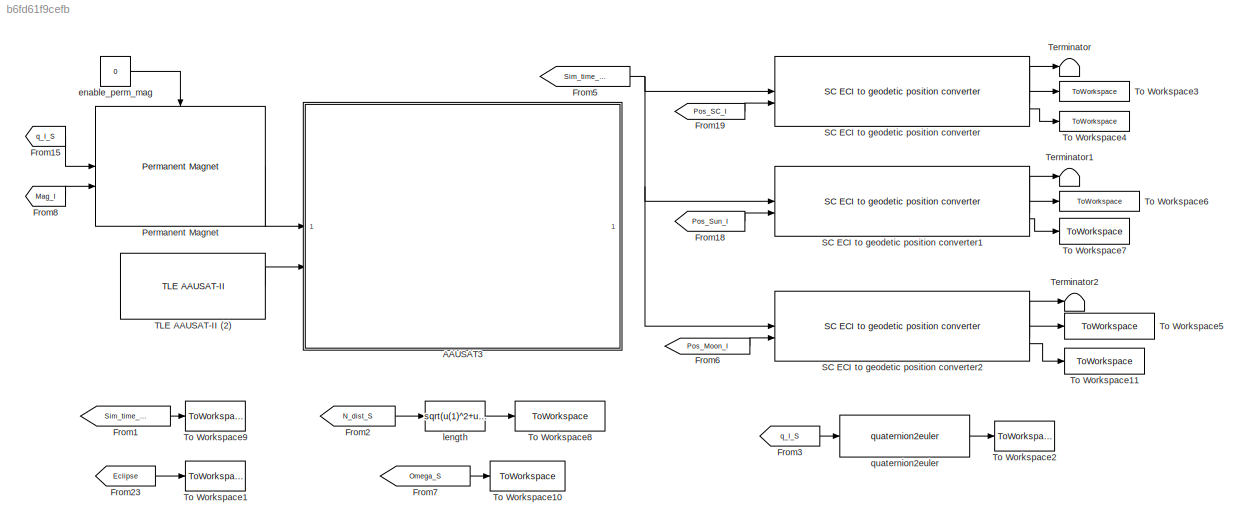
MODEL mdl_b6fd61f9cefb
KIND model
CONFIG AbsTol = auto
CONFIG EnableMultiTasking = on
CONFIG FixedStep = auto
CONFIG MaxStep = auto
CONFIG MinStep = auto
CONFIG RelTol = 1e-3
CONFIG SampleTimeConstraint = Unconstrained
CONFIG SolverName = ode45
CONFIG StartTime = 0.0
CONFIG StopTime = 58300
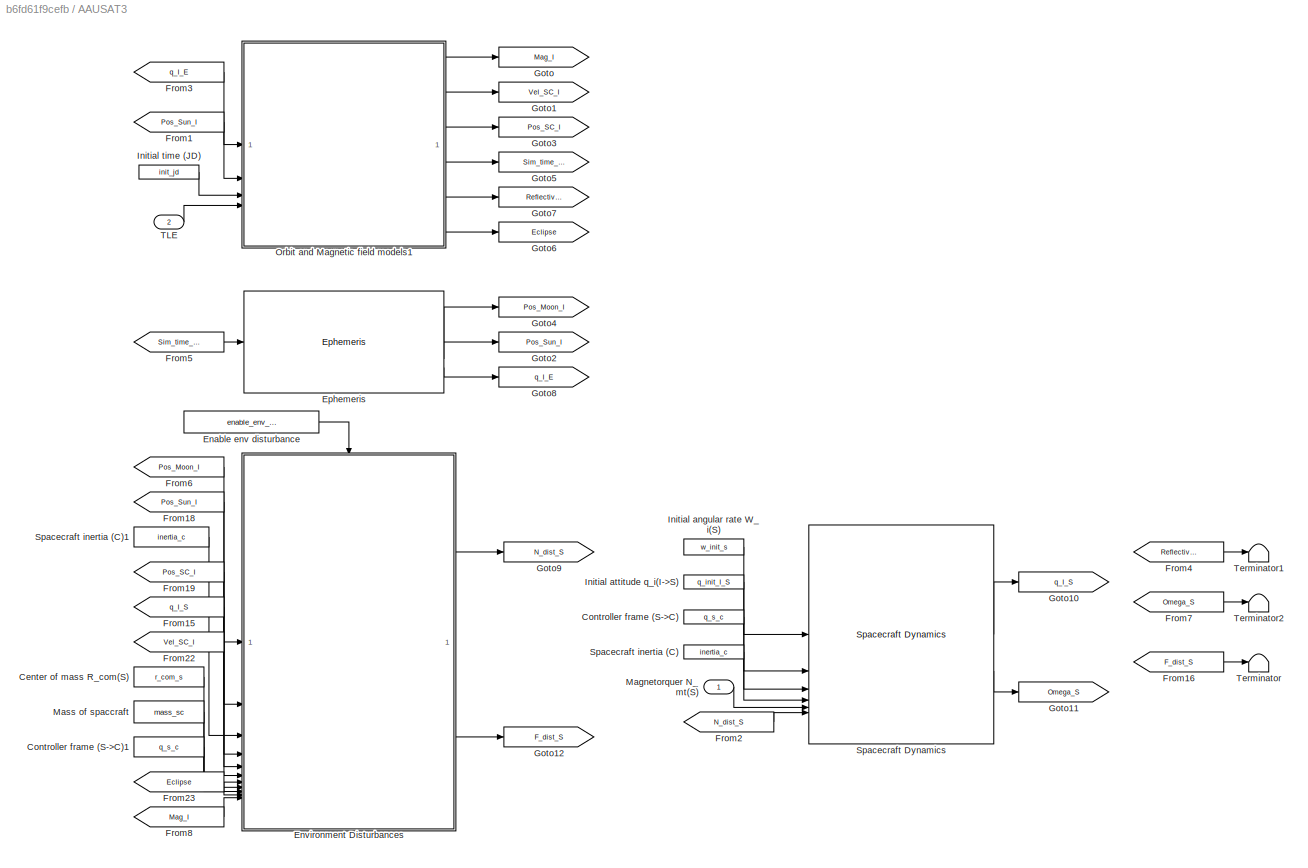
BLOCK [SubSystem] AAUSAT3
  AncestorBlock = aausat3_lib/AAUSAT3
  ShowPortLabels = none
BLOCK [Constant] AAUSAT3/Center of mass R_com(S)
  Value = r_com_s
BLOCK [Constant] AAUSAT3/Controller frame (S->C)
  NameLocation = top
  Value = q_s_c
BLOCK [Constant] AAUSAT3/Controller frame (S->C)1
  Value = q_s_c
BLOCK [Constant] AAUSAT3/Enable env disturbance
  Value = enable_env_disturbance
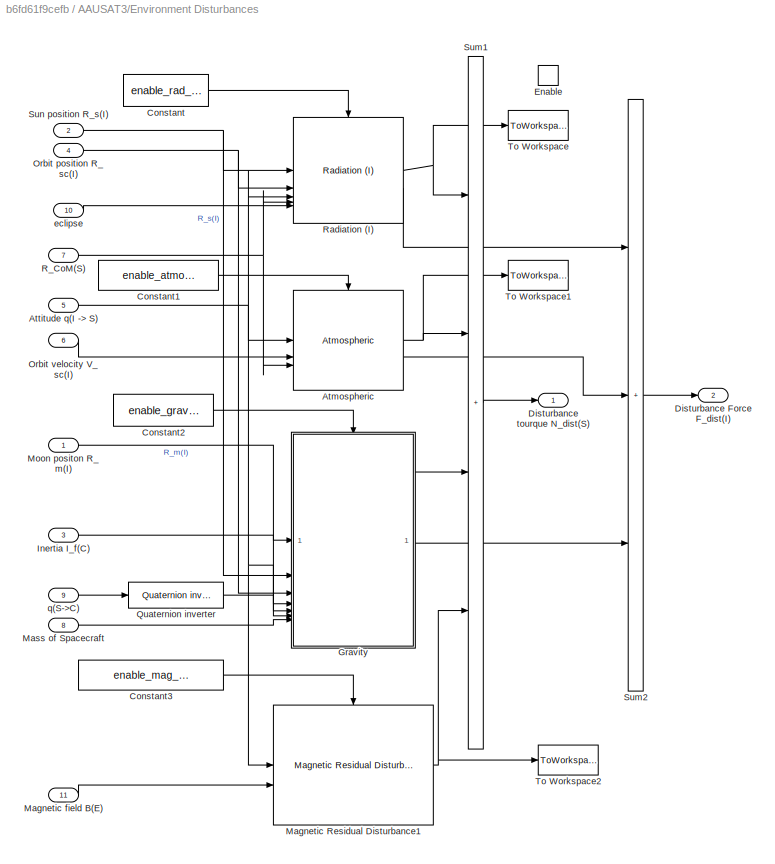
BLOCK [SubSystem] AAUSAT3/Environment Disturbances
  AncestorBlock = aausat3_lib/Disturbances/Environment Disturbances
BLOCK [Reference] AAUSAT3/Environment Disturbances/Atmospheric  REF=aausat3_lib/Disturbances/Atmospheric  (lib defined in mdl_4157f6465749, slx_d9305f96731e)
  SourceBlock = aausat3_lib/Disturbances/Atmospheric
  SourceProductName = AAUSAT3
BLOCK [Inport] AAUSAT3/Environment Disturbances/Attitude q(I -> S)
  Port = 5
BLOCK [Constant] AAUSAT3/Environment Disturbances/Constant
  Value = enable_rad_dist
BLOCK [Constant] AAUSAT3/Environment Disturbances/Constant1
  Value = enable_atmospheric_dist
BLOCK [Constant] AAUSAT3/Environment Disturbances/Constant2
  Value = enable_gravity_dist
BLOCK [Constant] AAUSAT3/Environment Disturbances/Constant3
  Value = enable_mag_residual_dist
BLOCK [Outport] AAUSAT3/Environment Disturbances/Disturbance Force F_dist(I)
  Port = 2
BLOCK [Outport] AAUSAT3/Environment Disturbances/Disturbance tourque N_dist(S)
BLOCK [EnablePort] AAUSAT3/Environment Disturbances/Enable
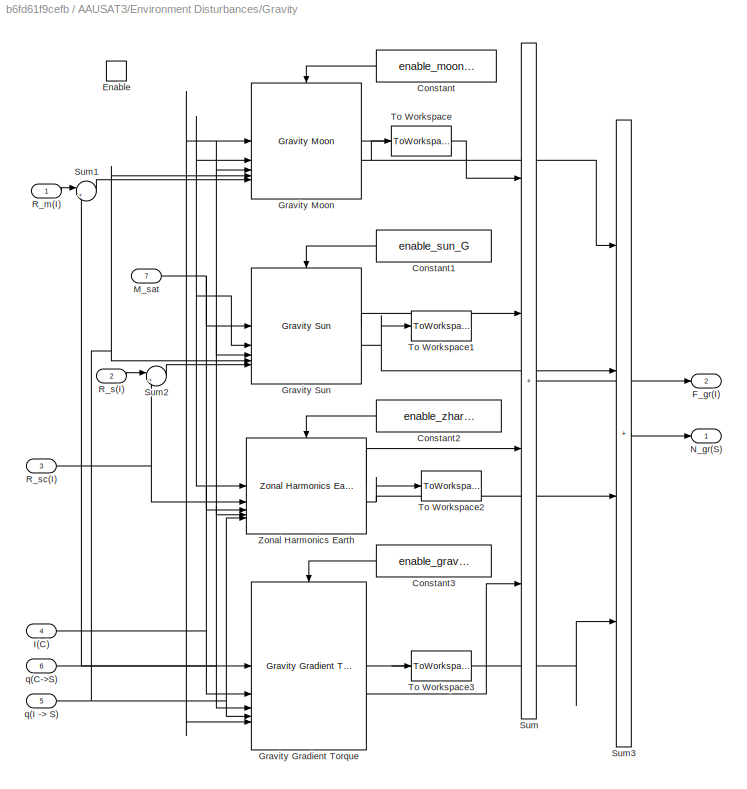
BLOCK [SubSystem] AAUSAT3/Environment Disturbances/Gravity
  AncestorBlock = aausat3_lib/Disturbances/Gravity
BLOCK [Constant] AAUSAT3/Environment Disturbances/Gravity/Constant
  Value = enable_moon_G
BLOCK [Constant] AAUSAT3/Environment Disturbances/Gravity/Constant1
  NameLocation = top
  Value = enable_sun_G
BLOCK [Constant] AAUSAT3/Environment Disturbances/Gravity/Constant2
  NameLocation = top
  Value = enable_zharm_earth
BLOCK [Constant] AAUSAT3/Environment Disturbances/Gravity/Constant3
  NameLocation = top
  Value = enable_gravity_torque
BLOCK [EnablePort] AAUSAT3/Environment Disturbances/Gravity/Enable
BLOCK [Outport] AAUSAT3/Environment Disturbances/Gravity/F_gr(I)
  Port = 2
BLOCK [Reference] AAUSAT3/Environment Disturbances/Gravity/Gravity Gradient Torque  REF=aausat3_lib/Disturbances/Gravity Gradient Torque  (lib defined in mdl_4157f6465749, slx_d9305f96731e)
  SourceBlock = aausat3_lib/Disturbances/Gravity Gradient Torque
  SourceProductName = AAUSAT3
BLOCK [Reference] AAUSAT3/Environment Disturbances/Gravity/Gravity Moon  REF=aausat3_lib/Disturbances/Gravity Moon  (lib defined in mdl_4157f6465749, slx_d9305f96731e)
  SourceBlock = aausat3_lib/Disturbances/Gravity Moon
  SourceProductName = AAUSAT3
BLOCK [Reference] AAUSAT3/Environment Disturbances/Gravity/Gravity Sun  REF=aausat3_lib/Disturbances/Gravity Sun  (lib defined in mdl_4157f6465749, slx_d9305f96731e)
  SourceBlock = aausat3_lib/Disturbances/Gravity Sun
  SourceProductName = AAUSAT3
BLOCK [Inport] AAUSAT3/Environment Disturbances/Gravity/I(C)
  Port = 4
BLOCK [Inport] AAUSAT3/Environment Disturbances/Gravity/M_sat
  Port = 7
BLOCK [Outport] AAUSAT3/Environment Disturbances/Gravity/N_gr(S)
BLOCK [Inport] AAUSAT3/Environment Disturbances/Gravity/R_m(I)
BLOCK [Inport] AAUSAT3/Environment Disturbances/Gravity/R_s(I)
  Port = 2
BLOCK [Inport] AAUSAT3/Environment Disturbances/Gravity/R_sc(I)
  Port = 3
BLOCK [Sum] AAUSAT3/Environment Disturbances/Gravity/Sum
  IconShape = rectangular
  Inputs = ++++
  SaturateOnIntegerOverflow = on
BLOCK [Sum] AAUSAT3/Environment Disturbances/Gravity/Sum1
  Inputs = |+-
  SaturateOnIntegerOverflow = on
BLOCK [Sum] AAUSAT3/Environment Disturbances/Gravity/Sum2
  Inputs = |+-
  SaturateOnIntegerOverflow = on
BLOCK [Sum] AAUSAT3/Environment Disturbances/Gravity/Sum3
  IconShape = rectangular
  Inputs = ++++
  SaturateOnIntegerOverflow = on
BLOCK [ToWorkspace] AAUSAT3/Environment Disturbances/Gravity/To Workspace
  MaxDataPoints = inf
  SampleTime = -1
  VariableName = N_moon
BLOCK [ToWorkspace] AAUSAT3/Environment Disturbances/Gravity/To Workspace1
  MaxDataPoints = inf
  SampleTime = -1
  VariableName = N_sun
BLOCK [ToWorkspace] AAUSAT3/Environment Disturbances/Gravity/To Workspace2
  MaxDataPoints = inf
  SampleTime = -1
  VariableName = N_zonal
BLOCK [ToWorkspace] AAUSAT3/Environment Disturbances/Gravity/To Workspace3
  MaxDataPoints = inf
  SampleTime = -1
  VariableName = N_earth
BLOCK [Reference] AAUSAT3/Environment Disturbances/Gravity/Zonal Harmonics Earth  REF=aausat3_lib/Disturbances/Zonal Harmonics  (lib defined in mdl_4157f6465749, slx_d9305f96731e)
 Earth
  SourceBlock = aausat3_lib/Disturbances/Zonal Harmonics\n Earth
  SourceProductName = AAUSAT3
  SourceType = SubSystem
BLOCK [Inport] AAUSAT3/Environment Disturbances/Gravity/q(C->S)
  Port = 6
BLOCK [Inport] AAUSAT3/Environment Disturbances/Gravity/q(I -> S)
  Port = 5
BLOCK [Inport] AAUSAT3/Environment Disturbances/Inertia I_f(C)
  NameLocation = top
  Port = 3
BLOCK [Reference] AAUSAT3/Environment Disturbances/Magnetic Residual Disturbance1  REF=aausat3_lib/Disturbances/Magnetic Residual Disturbance  (lib defined in mdl_4157f6465749, slx_d9305f96731e)
  SourceBlock = aausat3_lib/Disturbances/Magnetic Residual Disturbance
  SourceProductName = AAUSAT3
BLOCK [Inport] AAUSAT3/Environment Disturbances/Magnetic field B(E)
  Port = 11
BLOCK [Inport] AAUSAT3/Environment Disturbances/Mass of Spacecraft
  Port = 8
BLOCK [Inport] AAUSAT3/Environment Disturbances/Moon positon R_m(I)
  NameLocation = top
BLOCK [Inport] AAUSAT3/Environment Disturbances/Orbit position R_sc(I)
  Port = 4
BLOCK [Inport] AAUSAT3/Environment Disturbances/Orbit velocity V_sc(I)
  Port = 6
BLOCK [Reference] AAUSAT3/Environment Disturbances/Quaternion inverter  REF=aausat3_lib/Math Utilities/Quaternion operations/Quaternion inverter  (lib defined in mdl_4157f6465749, slx_d9305f96731e)
  SourceBlock = aausat3_lib/Math Utilities/Quaternion operations/Quaternion inverter
  SourceProductName = AAUSAT3
  SourceType = SubSystem
BLOCK [Inport] AAUSAT3/Environment Disturbances/R_CoM(S)
  Port = 7
BLOCK [Reference] AAUSAT3/Environment Disturbances/Radiation (I)  REF=aausat3_lib/Disturbances/Radiation (I)  (lib defined in mdl_4157f6465749, slx_d9305f96731e)
  SourceBlock = aausat3_lib/Disturbances/Radiation (I)
  SourceProductName = AAUSAT3
BLOCK [Sum] AAUSAT3/Environment Disturbances/Sum1
  IconShape = rectangular
  Inputs = ++++
  SaturateOnIntegerOverflow = on
BLOCK [Sum] AAUSAT3/Environment Disturbances/Sum2
  IconShape = rectangular
  Inputs = +++
  SaturateOnIntegerOverflow = on
BLOCK [Inport] AAUSAT3/Environment Disturbances/Sun position R_s(I)
  NameLocation = top
  Port = 2
BLOCK [ToWorkspace] AAUSAT3/Environment Disturbances/To Workspace
  MaxDataPoints = inf
  SampleTime = -1
  VariableName = N_radiation
BLOCK [ToWorkspace] AAUSAT3/Environment Disturbances/To Workspace1
  MaxDataPoints = inf
  SampleTime = -1
  VariableName = N_atmospheric
BLOCK [ToWorkspace] AAUSAT3/Environment Disturbances/To Workspace2
  MaxDataPoints = inf
  SampleTime = -1
  VariableName = N_mag_res
BLOCK [Inport] AAUSAT3/Environment Disturbances/eclipse
  Port = 10
BLOCK [Inport] AAUSAT3/Environment Disturbances/q(S->C)
  NameLocation = top
  Port = 9
BLOCK [Reference] AAUSAT3/Ephemeris  REF=aausat3_lib/Orbit and Ephemeris/Ephemeris  (lib defined in mdl_4157f6465749, slx_d9305f96731e)
  SourceBlock = aausat3_lib/Orbit and Ephemeris/Ephemeris
  SourceProductName = AAUSAT3
  SourceType = SubSystem
BLOCK [From] AAUSAT3/From1
  CloseFcn = tagdialog Close
  GotoTag = Pos_Sun_I
  TagVisibility = global
BLOCK [From] AAUSAT3/From15
  CloseFcn = tagdialog Close
  GotoTag = q_I_S
  TagVisibility = global
BLOCK [From] AAUSAT3/From16
  CloseFcn = tagdialog Close
  GotoTag = F_dist_S
  TagVisibility = global
BLOCK [From] AAUSAT3/From18
  CloseFcn = tagdialog Close
  GotoTag = Pos_Sun_I
  TagVisibility = global
BLOCK [From] AAUSAT3/From19
  CloseFcn = tagdialog Close
  GotoTag = Pos_SC_I
  TagVisibility = global
BLOCK [From] AAUSAT3/From2
  CloseFcn = tagdialog Close
  GotoTag = N_dist_S
  TagVisibility = global
BLOCK [From] AAUSAT3/From22
  CloseFcn = tagdialog Close
  GotoTag = Vel_SC_I
  TagVisibility = global
BLOCK [From] AAUSAT3/From23
  CloseFcn = tagdialog Close
  GotoTag = Eclipse
  TagVisibility = global
BLOCK [From] AAUSAT3/From3
  CloseFcn = tagdialog Close
  GotoTag = q_I_E
  TagVisibility = global
BLOCK [From] AAUSAT3/From4
  CloseFcn = tagdialog Close
  GotoTag = Reflectivity
  TagVisibility = global
BLOCK [From] AAUSAT3/From5
  CloseFcn = tagdialog Close
  GotoTag = Sim_time_JD
  TagVisibility = global
BLOCK [From] AAUSAT3/From6
  CloseFcn = tagdialog Close
  GotoTag = Pos_Moon_I
  TagVisibility = global
BLOCK [From] AAUSAT3/From7
  CloseFcn = tagdialog Close
  GotoTag = Omega_S
  TagVisibility = global
BLOCK [From] AAUSAT3/From8
  CloseFcn = tagdialog Close
  GotoTag = Mag_I
  TagVisibility = global
BLOCK [Goto] AAUSAT3/Goto
  GotoTag = Mag_I
  TagVisibility = global
BLOCK [Goto] AAUSAT3/Goto1
  GotoTag = Vel_SC_I
  TagVisibility = global
BLOCK [Goto] AAUSAT3/Goto10
  GotoTag = q_I_S
  TagVisibility = global
BLOCK [Goto] AAUSAT3/Goto11
  GotoTag = Omega_S
  TagVisibility = global
BLOCK [Goto] AAUSAT3/Goto12
  GotoTag = F_dist_S
  TagVisibility = global
BLOCK [Goto] AAUSAT3/Goto2
  GotoTag = Pos_Sun_I
  TagVisibility = global
BLOCK [Goto] AAUSAT3/Goto3
  GotoTag = Pos_SC_I
  TagVisibility = global
BLOCK [Goto] AAUSAT3/Goto4
  GotoTag = Pos_Moon_I
  TagVisibility = global
BLOCK [Goto] AAUSAT3/Goto5
  GotoTag = Sim_time_JD
  TagVisibility = global
BLOCK [Goto] AAUSAT3/Goto6
  GotoTag = Eclipse
  TagVisibility = global
BLOCK [Goto] AAUSAT3/Goto7
  GotoTag = Reflectivity
  TagVisibility = global
BLOCK [Goto] AAUSAT3/Goto8
  GotoTag = q_I_E
  TagVisibility = global
BLOCK [Goto] AAUSAT3/Goto9
  GotoTag = N_dist_S
  TagVisibility = global
BLOCK [Constant] AAUSAT3/Initial angular rate W_i(S)
  NameLocation = top
  Value = w_init_s
BLOCK [Constant] AAUSAT3/Initial attitude q_i(I->S)
  NameLocation = top
  Value = q_init_I_S
BLOCK [Constant] AAUSAT3/Initial time (JD)
  NameLocation = top
  Value = init_jd
BLOCK [Inport] AAUSAT3/Magnetorquer N_mt(S)
BLOCK [Constant] AAUSAT3/Mass of spaccraft
  Value = mass_sc
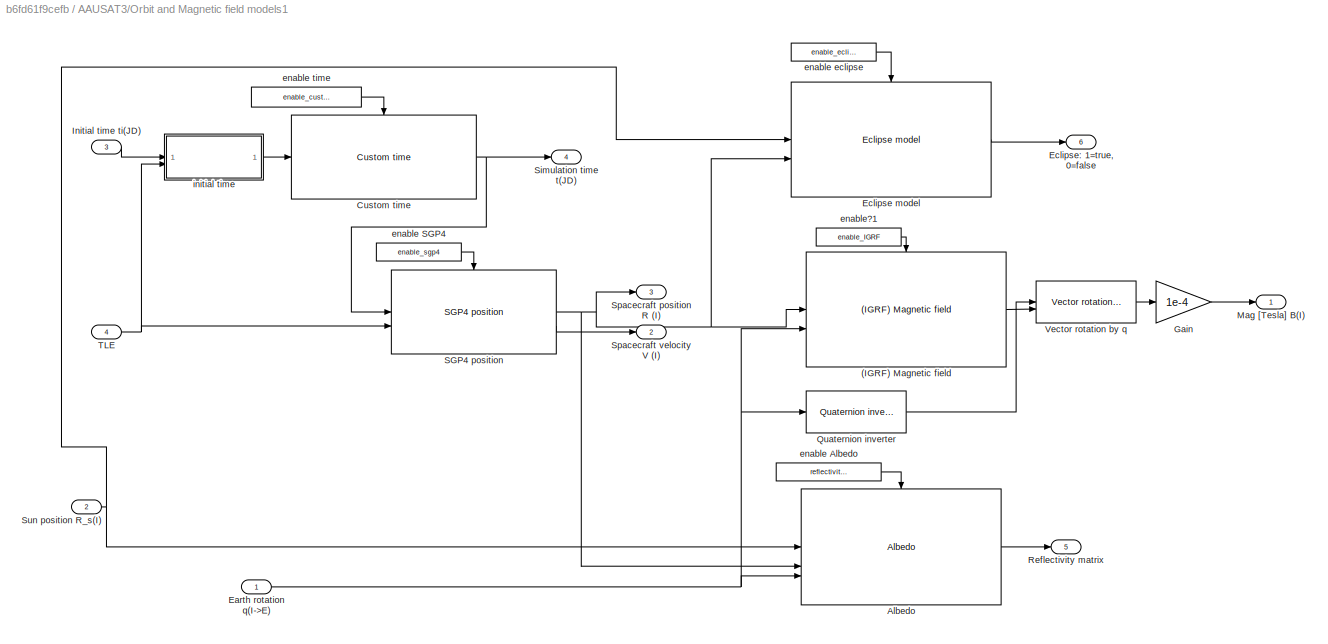
BLOCK [SubSystem] AAUSAT3/Orbit and Magnetic field models1
  AncestorBlock = aausat3_lib/Orbit and Ephemeris/Orbit and Magnetic field models
BLOCK [Reference] AAUSAT3/Orbit and Magnetic field models1/(IGRF) Magnetic field  REF=aausat3_lib/Orbit and Ephemeris/(IGRF) Magnetic field  (lib defined in mdl_4157f6465749, slx_d9305f96731e)
  SourceBlock = aausat3_lib/Orbit and Ephemeris/(IGRF) Magnetic field
  SourceProductName = AAUSAT3
  SourceType = SubSystem
BLOCK [Reference] AAUSAT3/Orbit and Magnetic field models1/Albedo  REF=aausat3_lib/Orbit and Ephemeris/Albedo  (lib defined in mdl_4157f6465749, slx_d9305f96731e)
  SourceBlock = aausat3_lib/Orbit and Ephemeris/Albedo
  SourceProductName = AAUSAT3
BLOCK [Reference] AAUSAT3/Orbit and Magnetic field models1/Custom time  REF=aausat3_lib/Orbit and Ephemeris/Custom time  (lib defined in mdl_4157f6465749, slx_d9305f96731e)
  SourceBlock = aausat3_lib/Orbit and Ephemeris/Custom time
  SourceProductName = AAUSAT3
  SourceType = SubSystem
BLOCK [Inport] AAUSAT3/Orbit and Magnetic field models1/Earth rotation q(I->E)
BLOCK [Reference] AAUSAT3/Orbit and Magnetic field models1/Eclipse model  REF=aausat3_lib/Orbit and Ephemeris/Eclipse model  (lib defined in mdl_4157f6465749, slx_d9305f96731e)
  SourceBlock = aausat3_lib/Orbit and Ephemeris/Eclipse model
  SourceProductName = AAUSAT3
BLOCK [Outport] AAUSAT3/Orbit and Magnetic field models1/Eclipse: 1=true, 0=false
  Port = 6
  PortDimensions = 1
BLOCK [Gain] AAUSAT3/Orbit and Magnetic field models1/Gain
  Gain = 1e-4
BLOCK [Inport] AAUSAT3/Orbit and Magnetic field models1/Initial time ti(JD)
  Port = 3
BLOCK [Outport] AAUSAT3/Orbit and Magnetic field models1/Mag [Tesla] B(I)
BLOCK [Reference] AAUSAT3/Orbit and Magnetic field models1/Quaternion inverter  REF=aausat3_lib/Math Utilities/Quaternion operations/Quaternion inverter  (lib defined in mdl_4157f6465749, slx_d9305f96731e)
  SourceBlock = aausat3_lib/Math Utilities/Quaternion operations/Quaternion inverter
  SourceProductName = AAUSAT3
  SourceType = SubSystem
BLOCK [Outport] AAUSAT3/Orbit and Magnetic field models1/Reflectivity matrix
  Port = 5
BLOCK [Reference] AAUSAT3/Orbit and Magnetic field models1/SGP4 position  REF=aausat3_lib/Orbit and Ephemeris/SGP4 position  (lib defined in mdl_4157f6465749, slx_d9305f96731e)
  SourceBlock = aausat3_lib/Orbit and Ephemeris/SGP4 position
  SourceProductName = AAUSAT3
  SourceType = SubSystem
BLOCK [Outport] AAUSAT3/Orbit and Magnetic field models1/Simulation time t(JD)
  Port = 4
BLOCK [Outport] AAUSAT3/Orbit and Magnetic field models1/Spacecraft position R (I)
  NameLocation = top
  Port = 3
BLOCK [Outport] AAUSAT3/Orbit and Magnetic field models1/Spacecraft velocity V (I)
  Port = 2
BLOCK [Inport] AAUSAT3/Orbit and Magnetic field models1/Sun position R_s(I)
  Port = 2
BLOCK [Inport] AAUSAT3/Orbit and Magnetic field models1/TLE
  Port = 4
BLOCK [Reference] AAUSAT3/Orbit and Magnetic field models1/Vector rotation by q  REF=aausat3_lib/Math Utilities/Quaternion operations/Vector rotation by q  (lib defined in mdl_4157f6465749, slx_d9305f96731e)
  SourceBlock = aausat3_lib/Math Utilities/Quaternion operations/Vector rotation by q
  SourceProductName = AAUSAT3
  SourceType = SubSystem
BLOCK [Constant] AAUSAT3/Orbit and Magnetic field models1/enable Albedo
  NameLocation = top
  Value = reflectivity_enabled
BLOCK [Constant] AAUSAT3/Orbit and Magnetic field models1/enable SGP4
  NameLocation = top
  Value = enable_sgp4
BLOCK [Constant] AAUSAT3/Orbit and Magnetic field models1/enable eclipse
  NameLocation = top
  Value = enable_eclipse
BLOCK [Constant] AAUSAT3/Orbit and Magnetic field models1/enable time
  NameLocation = top
  Value = enable_custom_time
BLOCK [Constant] AAUSAT3/Orbit and Magnetic field models1/enable?1
  NameLocation = top
  Value = enable_IGRF
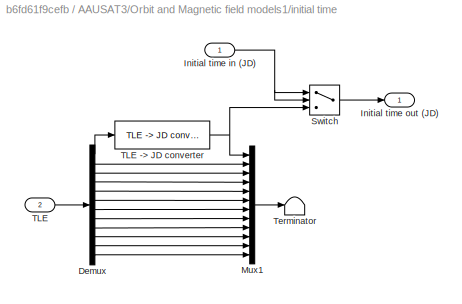
BLOCK [SubSystem] AAUSAT3/Orbit and Magnetic field models1/initial time
BLOCK [Demux] AAUSAT3/Orbit and Magnetic field models1/initial time/Demux
  Outputs = 12
BLOCK [Inport] AAUSAT3/Orbit and Magnetic field models1/initial time/Initial time in (JD)
BLOCK [Outport] AAUSAT3/Orbit and Magnetic field models1/initial time/Initial time out (JD)
BLOCK [Mux] AAUSAT3/Orbit and Magnetic field models1/initial time/Mux1
  DisplayOption = bar
  Inputs = 12
BLOCK [Switch] AAUSAT3/Orbit and Magnetic field models1/initial time/Switch
  Criteria = u2 > Threshold
  InputSameDT = off
  SaturateOnIntegerOverflow = off
BLOCK [Inport] AAUSAT3/Orbit and Magnetic field models1/initial time/TLE
  Port = 2
BLOCK [Reference] AAUSAT3/Orbit and Magnetic field models1/initial time/TLE -> JD converter  REF=aausat3_lib/Other Model Utilities/TLE -> JD converter  (lib defined in mdl_4157f6465749, slx_d9305f96731e)
  NameLocation = top
  SourceBlock = aausat3_lib/Other Model Utilities/TLE -> JD converter
  SourceProductName = AAUSAT3
  SourceType = SubSystem
BLOCK [Terminator] AAUSAT3/Orbit and Magnetic field models1/initial time/Terminator
BLOCK [Reference] AAUSAT3/Spacecraft Dynamics  REF=aausat3_lib/Dynamics and Kinematics/Spacecraft Dynamics  (lib defined in mdl_4157f6465749, slx_d9305f96731e)
  SourceBlock = aausat3_lib/Dynamics and Kinematics/Spacecraft Dynamics
  SourceProductName = AAUSAT3
  SourceType = SubSystem
BLOCK [Constant] AAUSAT3/Spacecraft inertia (C)
  NameLocation = top
  Value = inertia_c
BLOCK [Constant] AAUSAT3/Spacecraft inertia (C)1
  Value = inertia_c
BLOCK [Inport] AAUSAT3/TLE
  Port = 2
BLOCK [Terminator] AAUSAT3/Terminator
BLOCK [Terminator] AAUSAT3/Terminator1
BLOCK [Terminator] AAUSAT3/Terminator2
BLOCK [From] From1
  CloseFcn = tagdialog Close
  GotoTag = Sim_time_JD
  TagVisibility = global
BLOCK [From] From15
  CloseFcn = tagdialog Close
  GotoTag = q_I_S
  TagVisibility = global
BLOCK [From] From18
  CloseFcn = tagdialog Close
  GotoTag = Pos_Sun_I
  TagVisibility = global
BLOCK [From] From19
  CloseFcn = tagdialog Close
  GotoTag = Pos_SC_I
  TagVisibility = global
BLOCK [From] From2
  CloseFcn = tagdialog Close
  GotoTag = N_dist_S
  TagVisibility = global
BLOCK [From] From23
  CloseFcn = tagdialog Close
  GotoTag = Eclipse
  TagVisibility = global
BLOCK [From] From3
  CloseFcn = tagdialog Close
  GotoTag = q_I_S
  TagVisibility = global
BLOCK [From] From5
  CloseFcn = tagdialog Close
  GotoTag = Sim_time_JD
  TagVisibility = global
BLOCK [From] From6
  CloseFcn = tagdialog Close
  GotoTag = Pos_Moon_I
  TagVisibility = global
BLOCK [From] From7
  CloseFcn = tagdialog Close
  GotoTag = Omega_S
  TagVisibility = global
BLOCK [From] From8
  CloseFcn = tagdialog Close
  GotoTag = Mag_I
  TagVisibility = global
BLOCK [Reference] Permanent Magnet  REF=aausat3_lib/Actuator Emulation/Permanent Magnet  (lib defined in mdl_4157f6465749, slx_d9305f96731e)
  SourceBlock = aausat3_lib/Actuator Emulation/Permanent Magnet
  SourceProductName = AAUSAT3
BLOCK [Reference] SC ECI to geodetic position converter  REF=aausat3_lib/Other Model Utilities/SC ECI to geodetic position converter  (lib defined in mdl_4157f6465749, slx_d9305f96731e)
  SourceBlock = aausat3_lib/Other Model Utilities/SC ECI to geodetic position converter
  SourceProductName = AAUSAT3
BLOCK [Reference] SC ECI to geodetic position converter1  REF=aausat3_lib/Other Model Utilities/SC ECI to geodetic position converter  (lib defined in mdl_4157f6465749, slx_d9305f96731e)
  SourceBlock = aausat3_lib/Other Model Utilities/SC ECI to geodetic position converter
  SourceProductName = AAUSAT3
BLOCK [Reference] SC ECI to geodetic position converter2  REF=aausat3_lib/Other Model Utilities/SC ECI to geodetic position converter  (lib defined in mdl_4157f6465749, slx_d9305f96731e)
  SourceBlock = aausat3_lib/Other Model Utilities/SC ECI to geodetic position converter
  SourceProductName = AAUSAT3
BLOCK [Reference] TLE AAUSAT-II (2)  REF=aausat3_lib/Orbit and Ephemeris/TLE AAUSAT-II  (lib defined in mdl_4157f6465749, slx_d9305f96731e)
  SourceBlock = aausat3_lib/Orbit and Ephemeris/TLE AAUSAT-II
  SourceProductName = AAUSAT3
BLOCK [Terminator] Terminator
BLOCK [Terminator] Terminator1
BLOCK [Terminator] Terminator2
BLOCK [ToWorkspace] To Workspace1
  MaxDataPoints = inf
  SampleTime = -1
  VariableName = eclipse
BLOCK [ToWorkspace] To Workspace10
  MaxDataPoints = inf
  SampleTime = -1
  VariableName = omega_s
BLOCK [ToWorkspace] To Workspace11
  MaxDataPoints = inf
  SampleTime = 1
  VariableName = moon_latitude
BLOCK [ToWorkspace] To Workspace2
  MaxDataPoints = inf
  SampleTime = -1
  VariableName = attitude
BLOCK [ToWorkspace] To Workspace3
  MaxDataPoints = inf
  SampleTime = 1
  VariableName = sc_longitude
BLOCK [ToWorkspace] To Workspace4
  MaxDataPoints = inf
  SampleTime = 1
  VariableName = sc_latitude
BLOCK [ToWorkspace] To Workspace5
  MaxDataPoints = inf
  SampleTime = 1
  VariableName = moon_longitude
BLOCK [ToWorkspace] To Workspace6
  MaxDataPoints = inf
  SampleTime = 1
  VariableName = sun_longitude
BLOCK [ToWorkspace] To Workspace7
  MaxDataPoints = inf
  SampleTime = 1
  VariableName = sun_latitude
BLOCK [ToWorkspace] To Workspace8
  MaxDataPoints = inf
  SampleTime = -1
  VariableName = disturbance_tot
BLOCK [ToWorkspace] To Workspace9
  MaxDataPoints = inf
  SampleTime = -1
  VariableName = JD
BLOCK [Constant] enable_perm_mag
  Value = 0
BLOCK [Fcn] length
  Expr = sqrt(u(1)^2+u(2)^2+u(3)^2)
BLOCK [Reference] quaternion2euler  REF=aausat3_lib/Math Utilities/Quaternion operations/quaternion2euler  (lib defined in mdl_4157f6465749, slx_d9305f96731e)
  SourceBlock = aausat3_lib/Math Utilities/Quaternion operations/quaternion2euler
  SourceProductName = AAUSAT3
  SourceType = SubSystem
LINE From15:1 -> Permanent Magnet:1
LINE From18:1 -> SC ECI to geodetic position converter1:2
LINE From19:1 -> SC ECI to geodetic position converter:2
LINE From1:1 -> To Workspace9:1
LINE From23:1 -> To Workspace1:1
LINE From2:1 -> length:1
LINE From3:1 -> quaternion2euler:1
NET From5:1 -> SC ECI to geodetic position converter1:1, SC ECI to geodetic position converter2:1, SC ECI to geodetic position converter:1
LINE From6:1 -> SC ECI to geodetic position converter2:2
LINE From7:1 -> To Workspace10:1
LINE From8:1 -> Permanent Magnet:2
LINE Permanent Magnet:1 -> AAUSAT3:1
LINE SC ECI to geodetic position converter1:1 -> Terminator1:1
LINE SC ECI to geodetic position converter1:2 -> To Workspace6:1
LINE SC ECI to geodetic position converter1:3 -> To Workspace7:1
LINE SC ECI to geodetic position converter2:1 -> Terminator2:1
LINE SC ECI to geodetic position converter2:2 -> To Workspace5:1
LINE SC ECI to geodetic position converter2:3 -> To Workspace11:1
LINE SC ECI to geodetic position converter:1 -> Terminator:1
LINE SC ECI to geodetic position converter:2 -> To Workspace3:1
LINE SC ECI to geodetic position converter:3 -> To Workspace4:1
LINE TLE AAUSAT-II (2):1 -> AAUSAT3:2
LINE enable_perm_mag:1 -> Permanent Magnet:enable
LINE length:1 -> To Workspace8:1
LINE quaternion2euler:1 -> To Workspace2:1
note: NET lines group one-source signal fan-out (src -> all destinations, sorted); 1:1 wires keep LINE
